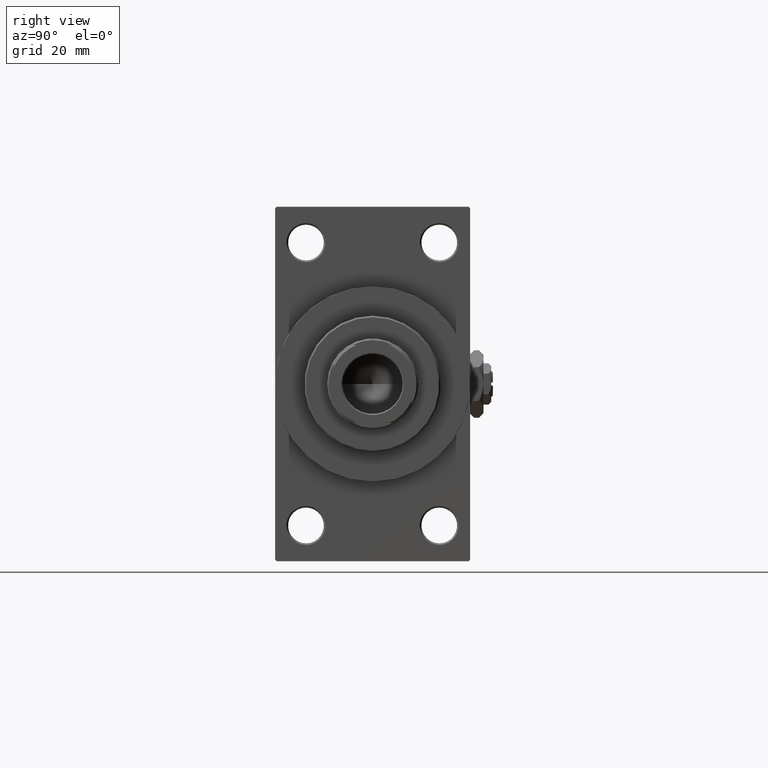
[diagram: clean part render]
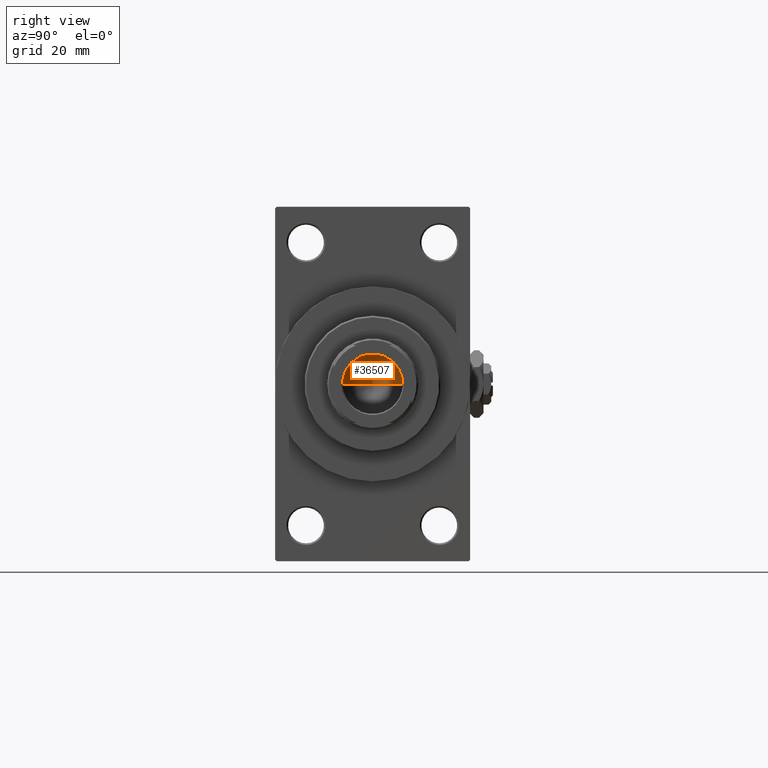
[diagram: same view with one face highlighted and labeled with its STEP entity id]
A machine part, right view. The second image highlights one B-rep face of the part: STEP entity #36507.
In plain terms, the highlighted conical surface has half-angle 59 deg.
Its self-contained STEP definition (entity closure, byte-faithful):
#119 = CARTESIAN_POINT ( 'NONE',  ( -9.249999999999992895, 1.132798289211300712E-15, 101.0000000000000000 ) ) ;
#1491 = DIRECTION ( 'NONE',  ( 0.8571673007021117785, 0.000000000000000000, 0.5150380749100550437 ) ) ;
#1811 = EDGE_LOOP ( 'NONE', ( #39053, #44654, #24872 ) ) ;
#4065 = CIRCLE ( 'NONE', #7261, 9.249999999999992895 ) ;
#5949 = EDGE_CURVE ( 'NONE', #8096, #6912, #35642, .T. ) ;
#6912 = VERTEX_POINT ( 'NONE', #11490 ) ;
#7261 = AXIS2_PLACEMENT_3D ( 'NONE', #14226, #37250, #25129 ) ;
#8096 = VERTEX_POINT ( 'NONE', #11441 ) ;
#10346 = DIRECTION ( 'NONE',  ( -0.8571673007021117785, 1.049727191138617956E-16, 0.5150380749100550437 ) ) ;
#11441 = CARTESIAN_POINT ( 'NONE',  ( -9.769621978240258809E-15, 0.000000000000000000, 95.44203927399506426 ) ) ;
#11490 = CARTESIAN_POINT ( 'NONE',  ( 9.249999999999992895, 0.000000000000000000, 101.0000000000000000 ) ) ;
#13334 = VECTOR ( 'NONE', #10346, 1000.000000000000000 ) ;
#13817 = LINE ( 'NONE', #17287, #13334 ) ;
#14226 = CARTESIAN_POINT ( 'NONE',  ( 0.000000000000000000, 0.000000000000000000, 101.0000000000000000 ) ) ;
#15856 = CARTESIAN_POINT ( 'NONE',  ( 9.249999999999992895, 0.000000000000000000, 101.0000000000000000 ) ) ;
#17287 = CARTESIAN_POINT ( 'NONE',  ( -9.249999999999992895, 1.132798289211300712E-15, 101.0000000000000000 ) ) ;
#22956 = AXIS2_PLACEMENT_3D ( 'NONE', #32756, #40921, #29290 ) ;
#24872 = ORIENTED_EDGE ( 'NONE', *, *, #43050, .T. ) ;
#25129 = DIRECTION ( 'NONE',  ( 1.000000000000000000, 0.000000000000000000, 0.000000000000000000 ) ) ;
#29290 = DIRECTION ( 'NONE',  ( 1.000000000000000000, 0.000000000000000000, 0.000000000000000000 ) ) ;
#32756 = CARTESIAN_POINT ( 'NONE',  ( 0.000000000000000000, 0.000000000000000000, 101.0000000000000000 ) ) ;
#32960 = EDGE_CURVE ( 'NONE', #8096, #44925, #13817, .T. ) ;
#35642 = LINE ( 'NONE', #15856, #43978 ) ;
#36507 = ADVANCED_FACE ( 'NONE', ( #48097 ), #37954, .F. ) ;
#37250 = DIRECTION ( 'NONE',  ( -0.000000000000000000, -0.000000000000000000, 1.000000000000000000 ) ) ;
#37954 = CONICAL_SURFACE ( 'NONE', #22956, 9.249999999999992895, 1.029744258676653423 ) ;
#39053 = ORIENTED_EDGE ( 'NONE', *, *, #5949, .F. ) ;
#40921 = DIRECTION ( 'NONE',  ( -0.000000000000000000, -0.000000000000000000, 1.000000000000000000 ) ) ;
#43050 = EDGE_CURVE ( 'NONE', #44925, #6912, #4065, .T. ) ;
#43978 = VECTOR ( 'NONE', #1491, 1000.000000000000000 ) ;
#44654 = ORIENTED_EDGE ( 'NONE', *, *, #32960, .T. ) ;
#44925 = VERTEX_POINT ( 'NONE', #119 ) ;
#48097 = FACE_OUTER_BOUND ( 'NONE', #1811, .T. ) ;